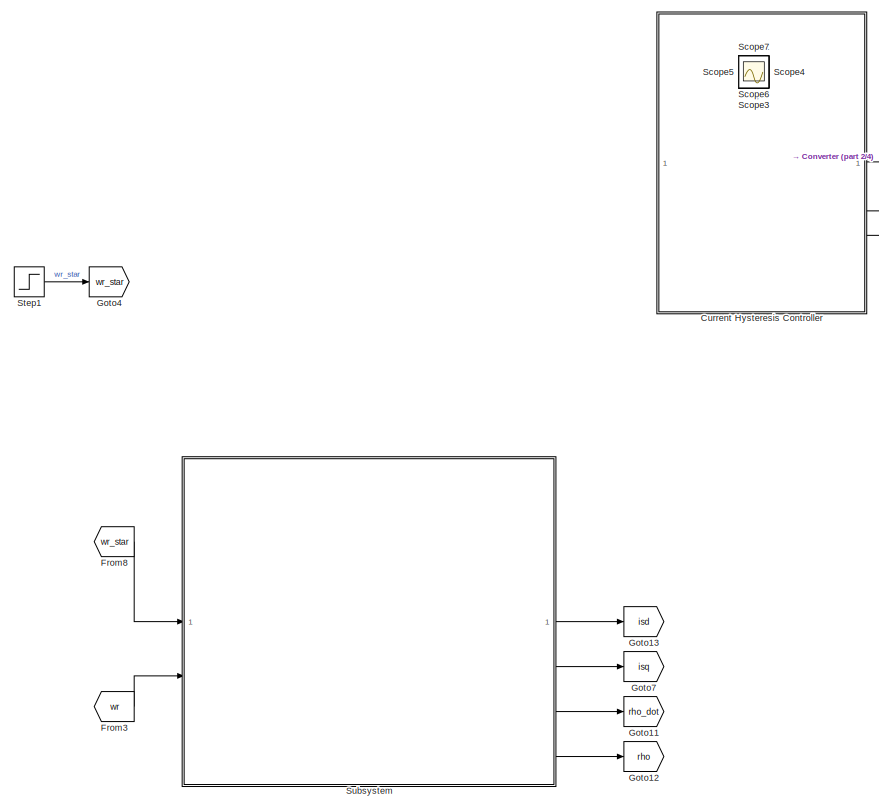
[diagram: root canvas - part 1/4, top left region]
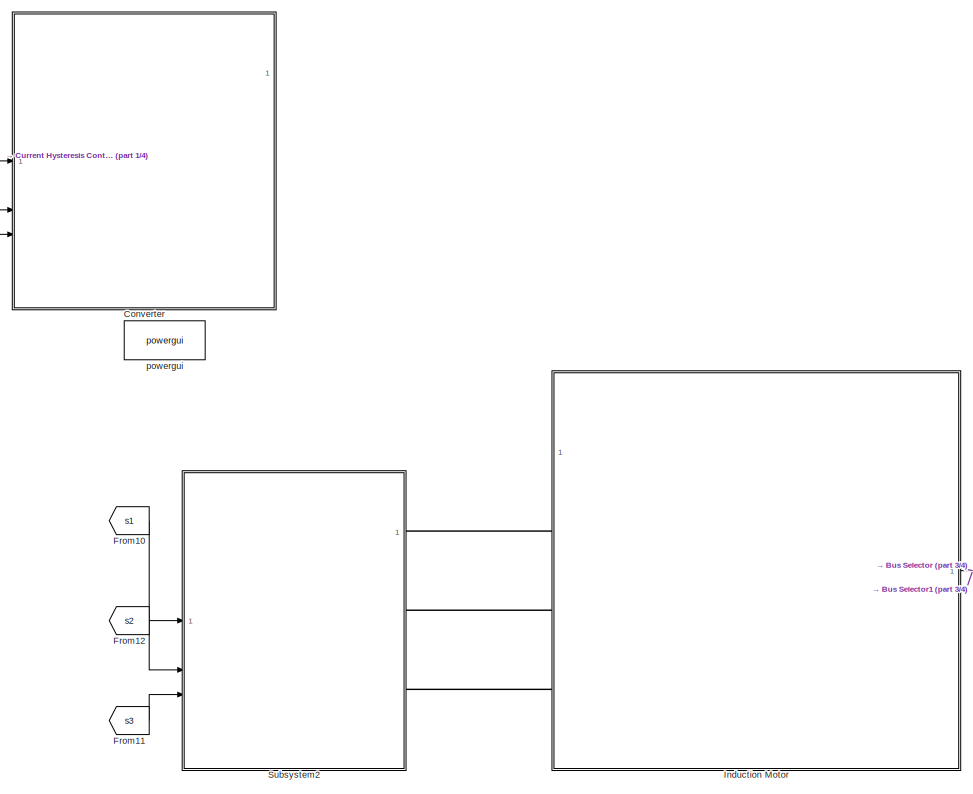
[diagram: root canvas - part 2/4, top center region]
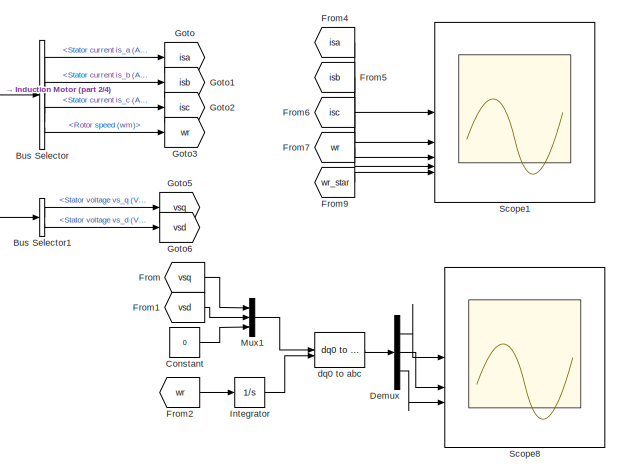
[diagram: root canvas - part 3/4, middle right region]
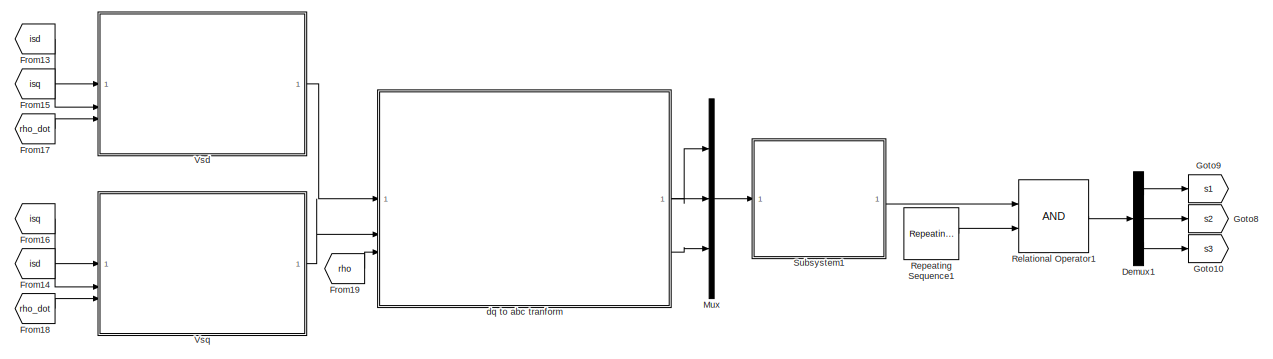
[diagram: root canvas - part 4/4, bottom center region]
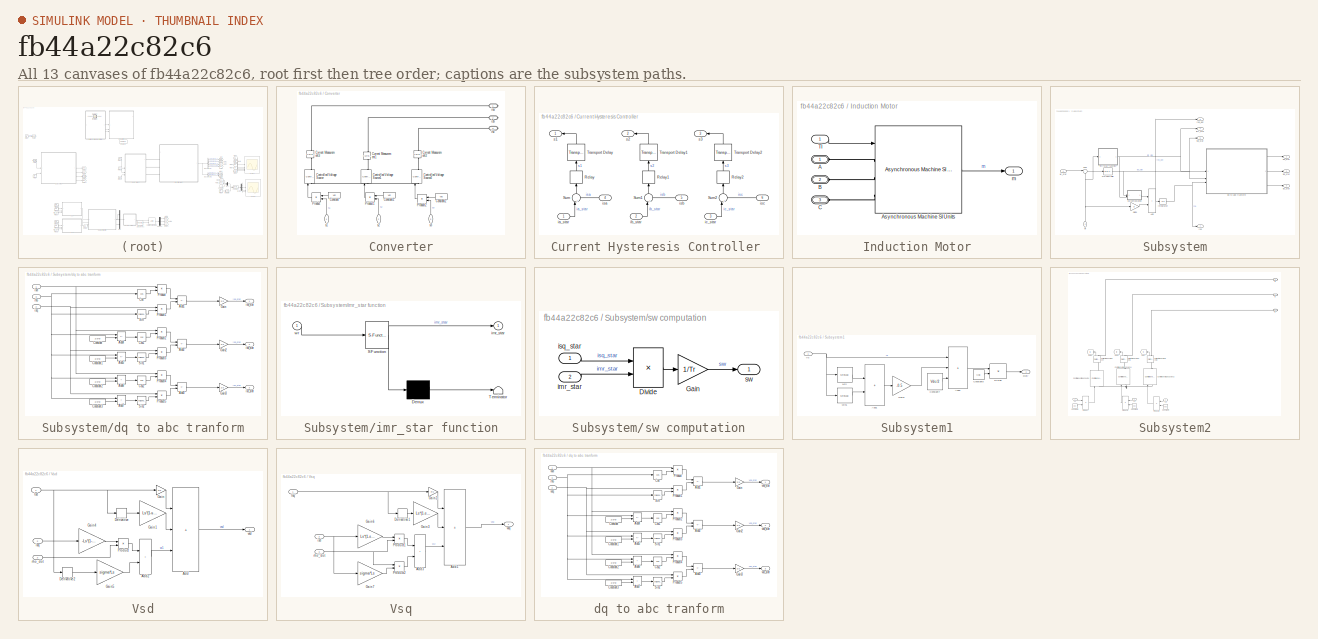
[diagram: thumbnail index - all 13 canvases of the model, root first then tree order]
MODEL slx_fb44a22c82c6
KIND model
CONFIG AbsTol = auto
CONFIG EnableMultiTasking = off
CONFIG FixedStep = auto
CONFIG InitFcn = Data
CONFIG MaxStep = auto
CONFIG MinStep = auto
CONFIG RelTol = 1e-3
CONFIG SampleTimeConstraint = Unconstrained
CONFIG SolverName = VariableStepAuto
CONFIG StartTime = 0.0
CONFIG StopTime = 5
BLOCK [BusSelector] Bus Selector
  OutputSignals = Stator measurements.Stator current is_a (A),Stator measurements.Stator current is_b (A),Stator measurements.Stator current is_c (A),Mechanical.Rotor speed (wm)
BLOCK [BusSelector] Bus Selector1
  OutputSignals = Stator measurements.Stator voltage vs_q (V),Stator measurements.Stator voltage vs_d (V)
BLOCK [Constant] Constant
  Value = 0
BLOCK [SubSystem] Converter
  Commented = on
  NameLocation = top
BLOCK [Constant] Converter/Constant
  NameLocation = top
  Value = Vdc
BLOCK [Constant] Converter/Constant1
  NameLocation = top
  Value = Vdc
BLOCK [Constant] Converter/Constant2
  NameLocation = top
  Value = Vdc
BLOCK [Reference] Converter/Controlled Voltage Source  REF=spsControlledVoltageSourceLib/Controlled Voltage Source
  LibrarySourceBlock = sps_lib/Sources/Controlled Voltage Source
  SourceBlock = spsControlledVoltageSourceLib/Controlled Voltage Source
  SourceType = Controlled Voltage Source
BLOCK [Reference] Converter/Controlled Voltage Source1  REF=spsControlledVoltageSourceLib/Controlled Voltage Source
  LibrarySourceBlock = sps_lib/Sources/Controlled Voltage Source
  SourceBlock = spsControlledVoltageSourceLib/Controlled Voltage Source
  SourceType = Controlled Voltage Source
BLOCK [Reference] Converter/Controlled Voltage Source2  REF=spsControlledVoltageSourceLib/Controlled Voltage Source
  LibrarySourceBlock = sps_lib/Sources/Controlled Voltage Source
  SourceBlock = spsControlledVoltageSourceLib/Controlled Voltage Source
  SourceType = Controlled Voltage Source
BLOCK [Reference] Converter/Current Measurement1  REF=spsCurrentMeasurementLib/Current Measurement
  LibrarySourceBlock = sps_lib/Sensors and Measurements/Current Measurement
  NameLocation = right
  SourceBlock = spsCurrentMeasurementLib/Current Measurement
  SourceType = Current Measurement
  UserDataPersistent = on
BLOCK [Reference] Converter/Current Measurement2  REF=spsCurrentMeasurementLib/Current Measurement
  LibrarySourceBlock = sps_lib/Sensors and Measurements/Current Measurement
  NameLocation = right
  SourceBlock = spsCurrentMeasurementLib/Current Measurement
  SourceType = Current Measurement
  UserDataPersistent = on
BLOCK [Reference] Converter/Current Measurement3  REF=spsCurrentMeasurementLib/Current Measurement
  LibrarySourceBlock = sps_lib/Sensors and Measurements/Current Measurement
  NameLocation = right
  SourceBlock = spsCurrentMeasurementLib/Current Measurement
  SourceType = Current Measurement
  UserDataPersistent = on
BLOCK [Product] Converter/Product
  NameLocation = top
BLOCK [Product] Converter/Product1
  NameLocation = top
BLOCK [Product] Converter/Product2
  NameLocation = top
BLOCK [PMIOPort] Converter/isa
  Side = Right
BLOCK [PMIOPort] Converter/isb
  Port = 2
  Side = Right
BLOCK [PMIOPort] Converter/isc
  Port = 3
  Side = Right
BLOCK [Inport] Converter/s1
  NameLocation = right
BLOCK [Inport] Converter/s2
  NameLocation = right
  Port = 2
BLOCK [Inport] Converter/s3
  NameLocation = right
  Port = 3
BLOCK [SubSystem] Current Hysteresis Controller 
  Commented = on
  NameLocation = top
  PortSchema = {"entries":[{"content":{"sides":[{"content":{"connectorIds":["In1","In2","In3"]},"type":"ConnectorPlacement.EquallySpacedRectSide","uuid":"0262a758-344e-4b59-aa8e-2379075e1762"},{"content":{"connectorIds":["Out1","Out2","Out3"],"side":"RIGHT"},"type":"ConnectorPlacement.EquallySpacedRectSide","uuid":"0941517e-4382-4a35-83ac-77ea733cd1ec"},{"content":{"connectorIds":[],"side":"TOP"},"type":"Connect...<+427ch>
BLOCK [Relay] Current Hysteresis Controller /Relay
  NameLocation = right
  OffSwitchValue = 0
  OnSwitchValue = delta
BLOCK [Relay] Current Hysteresis Controller /Relay1
  NameLocation = right
  OffSwitchValue = 0
  OnSwitchValue = delta
BLOCK [Relay] Current Hysteresis Controller /Relay2
  NameLocation = right
  OffSwitchValue = 0
  OnSwitchValue = delta
BLOCK [Sum] Current Hysteresis Controller /Sum
  Inputs = |+-
  NameLocation = right
BLOCK [Sum] Current Hysteresis Controller /Sum1
  Inputs = |+-
  NameLocation = right
BLOCK [Sum] Current Hysteresis Controller /Sum2
  Inputs = |+-
  NameLocation = right
BLOCK [TransportDelay] Current Hysteresis Controller /Transport Delay
  DelayTime = 10e-6
  NameLocation = right
BLOCK [TransportDelay] Current Hysteresis Controller /Transport Delay1
  DelayTime = 10e-6
  NameLocation = right
BLOCK [TransportDelay] Current Hysteresis Controller /Transport Delay2
  DelayTime = 10e-6
  NameLocation = right
BLOCK [Inport] Current Hysteresis Controller /ia_star
BLOCK [Inport] Current Hysteresis Controller /ib_star
  Port = 2
BLOCK [Inport] Current Hysteresis Controller /ic_star
  Port = 3
BLOCK [Inport] Current Hysteresis Controller /isa
  Port = 4
BLOCK [Inport] Current Hysteresis Controller /isb
  Port = 5
BLOCK [Inport] Current Hysteresis Controller /isc
  Port = 6
BLOCK [Outport] Current Hysteresis Controller /s1
BLOCK [Outport] Current Hysteresis Controller /s2
  Port = 2
BLOCK [Outport] Current Hysteresis Controller /s3
  Port = 3
BLOCK [Demux] Demux
  Outputs = 3
BLOCK [Demux] Demux1
  Outputs = 3
BLOCK [From] From
  GotoTag = vsq
BLOCK [From] From1
  GotoTag = vsd
BLOCK [From] From10
  GotoTag = s1
BLOCK [From] From11
  GotoTag = s3
BLOCK [From] From12
  GotoTag = s2
BLOCK [From] From13
  GotoTag = isd
BLOCK [From] From14
  GotoTag = isd
BLOCK [From] From15
  GotoTag = isq
BLOCK [From] From16
  GotoTag = isq
BLOCK [From] From17
  GotoTag = rho_dot
BLOCK [From] From18
  GotoTag = rho_dot
BLOCK [From] From19
  GotoTag = rho
BLOCK [From] From2
  GotoTag = wr
BLOCK [From] From3
  GotoTag = wr
BLOCK [From] From4
  GotoTag = isa
BLOCK [From] From5
  GotoTag = isb
BLOCK [From] From6
  GotoTag = isc
BLOCK [From] From7
  GotoTag = wr
BLOCK [From] From8
  GotoTag = wr_star
BLOCK [From] From9
  GotoTag = wr_star
BLOCK [Goto] Goto
  GotoTag = isa
BLOCK [Goto] Goto1
  GotoTag = isb
BLOCK [Goto] Goto10
  GotoTag = s3
  NameLocation = top
BLOCK [Goto] Goto11
  GotoTag = rho_dot
BLOCK [Goto] Goto12
  GotoTag = rho
BLOCK [Goto] Goto13
  GotoTag = isd
BLOCK [Goto] Goto2
  GotoTag = isc
BLOCK [Goto] Goto3
  GotoTag = wr
BLOCK [Goto] Goto4
  GotoTag = wr_star
BLOCK [Goto] Goto5
  GotoTag = vsq
BLOCK [Goto] Goto6
  GotoTag = vsd
BLOCK [Goto] Goto7
  GotoTag = isq
BLOCK [Goto] Goto8
  GotoTag = s2
  NameLocation = top
BLOCK [Goto] Goto9
  GotoTag = s1
BLOCK [SubSystem] Induction Motor
  NameLocation = top
BLOCK [PMIOPort] Induction Motor/A
  Side = Left
BLOCK [Reference] Induction Motor/Asynchronous Machine SI Units  REF=spsAsynchronousMachineSIUnitsLib/Asynchronous Machine
SI Units
  LibrarySourceBlock = sps_lib/Electrical Machines/Asynchronous Machine\nSI Units
  SourceBlock = spsAsynchronousMachineSIUnitsLib/Asynchronous Machine\nSI Units
  SourceType = Asynchronous Machine
BLOCK [PMIOPort] Induction Motor/B
  Port = 2
  Side = Left
BLOCK [PMIOPort] Induction Motor/C
  Port = 3
  Side = Left
BLOCK [Inport] Induction Motor/Tl
BLOCK [Outport] Induction Motor/m
BLOCK [Integrator] Integrator
BLOCK [Mux] Mux
  DisplayOption = bar
  Inputs = 3
BLOCK [Mux] Mux1
  DisplayOption = bar
  Inputs = 3
BLOCK [RelationalOperator] Relational Operator1
  InputSameDT = off
  OutDataTypeStr = boolean
  RndMeth = Simplest
BLOCK [Reference] Repeating Sequence1  REF=simulink/Sources/Repeating
Sequence
  SourceBlock = simulink/Sources/Repeating\nSequence
  SourceType = Repeating table
BLOCK [Scope] Scope
  Floating = off
  IOType = viewer
  NumInputPorts = 1
  ScopeSpecificationString = Simulink.scopes.TimeScopeBlockCfg('CurrentConfiguration', extmgr.ConfigurationSet(extmgr.Configuration('Core','General UI',true),extmgr.Configuration('Core','Source UI',true),extmgr.Configuration('Sources','WiredSimulink',true),extmgr.Configuration('Visuals','Time Domain',true,'SerializedDisplays',{struct('MinYLimReal','-0.0000013','MaxYLimReal','0.0000001','YLabelReal','','MinYLimMag','0.0000000'...<+1367ch>
BLOCK [Scope] Scope1
  Floating = off
  NumInputPorts = 5
  ScopeSpecificationString = Simulink.scopes.TimeScopeBlockCfg('CurrentConfiguration', extmgr.ConfigurationSet(extmgr.Configuration('Core','General UI',true),extmgr.Configuration('Core','Source UI',true),extmgr.Configuration('Sources','WiredSimulink',true,'DataLoggingVariableName','ScopeData1'),extmgr.Configuration('Visuals','Time Domain',true,'TimeAxisLabels','All','SerializedDisplays',{struct('MinYLimReal','-12424.37348','M...<+3599ch>
BLOCK [Scope] Scope2
  Floating = off
  IOType = viewer
  NumInputPorts = 1
  ScopeSpecificationString = Simulink.scopes.TimeScopeBlockCfg('CurrentConfiguration', extmgr.ConfigurationSet(extmgr.Configuration('Core','General UI',true),extmgr.Configuration('Core','Source UI',true),extmgr.Configuration('Sources','WiredSimulink',true,'DataLoggingVariableName','ScopeData1'),extmgr.Configuration('Visuals','Time Domain',true,'SerializedDisplays',{struct('MinYLimReal','-502005782268.1521','MaxYLimReal','5578...<+1466ch>
BLOCK [Scope] Scope3
  Floating = off
  IOType = viewer
  NumInputPorts = 1
  ScopeSpecificationString = Simulink.scopes.TimeScopeBlockCfg('CurrentConfiguration', extmgr.ConfigurationSet(extmgr.Configuration('Core','General UI',true),extmgr.Configuration('Core','Source UI',true),extmgr.Configuration('Sources','WiredSimulink',true,'DataLoggingVariableName','ScopeData2'),extmgr.Configuration('Visuals','Time Domain',true,'SerializedDisplays',{struct('MinYLimReal','-3574835038086523.00000','MaxYLimReal',...<+1508ch>
BLOCK [Scope] Scope4
  Floating = off
  IOType = viewer
  NumInputPorts = 1
  ScopeSpecificationString = Simulink.scopes.TimeScopeBlockCfg('CurrentConfiguration', extmgr.ConfigurationSet(extmgr.Configuration('Core','General UI',true),extmgr.Configuration('Core','Source UI',true),extmgr.Configuration('Sources','WiredSimulink',true,'DataLoggingVariableName','ScopeData4'),extmgr.Configuration('Visuals','Time Domain',true,'SerializedDisplays',{struct('MinYLimReal','-12.51125','MaxYLimReal','12.50125','YL...<+1423ch>
BLOCK [Scope] Scope5
  Floating = off
  IOType = viewer
  NumInputPorts = 1
  ScopeSpecificationString = Simulink.scopes.TimeScopeBlockCfg('CurrentConfiguration', extmgr.ConfigurationSet(extmgr.Configuration('Core','General UI',true),extmgr.Configuration('Core','Source UI',true),extmgr.Configuration('Sources','WiredSimulink',true,'DataLoggingVariableName','ScopeData3'),extmgr.Configuration('Visuals','Time Domain',true,'SerializedDisplays',{struct('MinYLimReal','104.54545','MaxYLimReal','304.54545','Y...<+1373ch>
BLOCK [Scope] Scope6
  Floating = off
  IOType = viewer
  NumInputPorts = 1
  ScopeSpecificationString = Simulink.scopes.TimeScopeBlockCfg('CurrentConfiguration', extmgr.ConfigurationSet(extmgr.Configuration('Core','General UI',true),extmgr.Configuration('Core','Source UI',true),extmgr.Configuration('Sources','WiredSimulink',true,'DataLoggingVariableName','ScopeData4'),extmgr.Configuration('Visuals','Time Domain',true,'SerializedDisplays',{struct('MinYLimReal','-142262712.92777','MaxYLimReal','240071...<+1448ch>
BLOCK [Scope] Scope7
  Floating = off
  IOType = viewer
  NumInputPorts = 1
  ScopeSpecificationString = Simulink.scopes.TimeScopeBlockCfg('CurrentConfiguration', extmgr.ConfigurationSet(extmgr.Configuration('Core','General UI',true),extmgr.Configuration('Core','Source UI',true),extmgr.Configuration('Sources','WiredSimulink',true,'DataLoggingVariableName','ScopeData5'),extmgr.Configuration('Visuals','Time Domain',true,'SerializedDisplays',{struct('MinYLimReal','0.24288','MaxYLimReal','0.26693','YLabe...<+1403ch>
BLOCK [Scope] Scope8
  Floating = off
  NumInputPorts = 3
  ScopeSpecificationString = Simulink.scopes.TimeScopeBlockCfg('CurrentConfiguration', extmgr.ConfigurationSet(extmgr.Configuration('Core','General UI',true),extmgr.Configuration('Core','Source UI',true),extmgr.Configuration('Sources','WiredSimulink',true,'DataLoggingVariableName','ScopeData6'),extmgr.Configuration('Visuals','Time Domain',true,'TimeAxisLabels','All','SerializedDisplays',{struct('MinYLimReal','-291.66667','Max...<+2790ch>
BLOCK [Step] Step1
  After = wn
  SampleTime = 0
BLOCK [SubSystem] Subsystem
BLOCK [Sum] Subsystem/Add
  IconShape = rectangular
BLOCK [Gain] Subsystem/Gain1
  Gain = p
BLOCK [Integrator] Subsystem/Integrator
BLOCK [Reference] Subsystem/PID Controller  REF=slpidlib/PID Controller
  LibrarySourceBlock = simulink/Continuous/PID Controller
  SourceBlock = slpidlib/PID Controller
  SourceType = PID 1dof
BLOCK [Sum] Subsystem/Sum
  Inputs = |+-
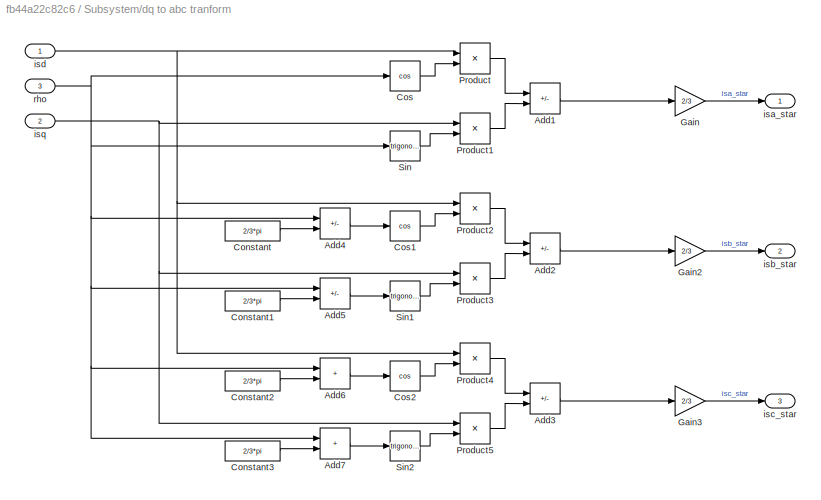
BLOCK [SubSystem] Subsystem/dq to abc tranform
  Commented = on
  NameLocation = top
BLOCK [Sum] Subsystem/dq to abc tranform/Add1
  IconShape = rectangular
  Inputs = +-
BLOCK [Sum] Subsystem/dq to abc tranform/Add2
  IconShape = rectangular
  Inputs = +-
BLOCK [Sum] Subsystem/dq to abc tranform/Add3
  IconShape = rectangular
  Inputs = +-
BLOCK [Sum] Subsystem/dq to abc tranform/Add4
  IconShape = rectangular
  Inputs = +-
BLOCK [Sum] Subsystem/dq to abc tranform/Add5
  IconShape = rectangular
  Inputs = +-
BLOCK [Sum] Subsystem/dq to abc tranform/Add6
  IconShape = rectangular
BLOCK [Sum] Subsystem/dq to abc tranform/Add7
  IconShape = rectangular
BLOCK [Constant] Subsystem/dq to abc tranform/Constant
  Value = 2/3*pi
BLOCK [Constant] Subsystem/dq to abc tranform/Constant1
  Value = 2/3*pi
BLOCK [Constant] Subsystem/dq to abc tranform/Constant2
  Value = 2/3*pi
BLOCK [Constant] Subsystem/dq to abc tranform/Constant3
  Value = 2/3*pi
BLOCK [Trigonometry] Subsystem/dq to abc tranform/Cos
  Operator = cos
BLOCK [Trigonometry] Subsystem/dq to abc tranform/Cos1
  Operator = cos
BLOCK [Trigonometry] Subsystem/dq to abc tranform/Cos2
  Operator = cos
BLOCK [Gain] Subsystem/dq to abc tranform/Gain
  Gain = 2/3
BLOCK [Gain] Subsystem/dq to abc tranform/Gain2
  Gain = 2/3
BLOCK [Gain] Subsystem/dq to abc tranform/Gain3
  Gain = 2/3
BLOCK [Product] Subsystem/dq to abc tranform/Product
BLOCK [Product] Subsystem/dq to abc tranform/Product1
BLOCK [Product] Subsystem/dq to abc tranform/Product2
BLOCK [Product] Subsystem/dq to abc tranform/Product3
BLOCK [Product] Subsystem/dq to abc tranform/Product4
BLOCK [Product] Subsystem/dq to abc tranform/Product5
BLOCK [Trigonometry] Subsystem/dq to abc tranform/Sin
BLOCK [Trigonometry] Subsystem/dq to abc tranform/Sin1
BLOCK [Trigonometry] Subsystem/dq to abc tranform/Sin2
BLOCK [Outport] Subsystem/dq to abc tranform/isa_star
BLOCK [Outport] Subsystem/dq to abc tranform/isb_star
  Port = 2
BLOCK [Outport] Subsystem/dq to abc tranform/isc_star
  Port = 3
BLOCK [Inport] Subsystem/dq to abc tranform/isd
BLOCK [Inport] Subsystem/dq to abc tranform/isq
  Port = 2
BLOCK [Inport] Subsystem/dq to abc tranform/rho
  Port = 3
BLOCK [Outport] Subsystem/imr_star
  Port = 4
BLOCK [SubSystem] Subsystem/imr_star function
  ErrorFcn = Stateflow.Translate.translate
  LibrarySourceBlock = simulink/User-Defined\nFunctions/MATLAB Function
  NameLocation = top
  PermitHierarchicalResolution = ExplicitOnly
  SFBlockType = MATLAB Function
  TreatAsAtomicUnit = on
BLOCK [Demux] Subsystem/imr_star function/ Demux 
  Outputs = 1
BLOCK [S-Function] Subsystem/imr_star function/ SFunction 
  EnableBusSupport = on
  FunctionName = sf_sfun
  Parameters = Imn,wn
  PortCounts = [1 2]
  SFcnIsStateOwnerBlock = off
  SFunctionDeploymentMode = off
  Tag = Stateflow S-Function 2
BLOCK [Terminator] Subsystem/imr_star function/ Terminator 
BLOCK [Outport] Subsystem/imr_star function/imr_star
BLOCK [Inport] Subsystem/imr_star function/wr
BLOCK [Outport] Subsystem/isa_star
BLOCK [Outport] Subsystem/isb_star
  Port = 2
BLOCK [Outport] Subsystem/isc_star
  Port = 3
BLOCK [Outport] Subsystem/isq_star
  Port = 5
BLOCK [Outport] Subsystem/rho
  Port = 7
BLOCK [Outport] Subsystem/rho_dot
  Port = 6
BLOCK [SubSystem] Subsystem/sw computation
  NameLocation = top
BLOCK [Product] Subsystem/sw computation/Divide
  Inputs = */
  RndMeth = Zero
  SaturateOnIntegerOverflow = on
BLOCK [Gain] Subsystem/sw computation/Gain
  Gain = 1/Tr
BLOCK [Inport] Subsystem/sw computation/imr_star
  Port = 2
BLOCK [Inport] Subsystem/sw computation/isq_star
  NameLocation = top
BLOCK [Outport] Subsystem/sw computation/sw
BLOCK [Inport] Subsystem/wr
  NameLocation = right
  Port = 2
BLOCK [Inport] Subsystem/wr_star
BLOCK [SubSystem] Subsystem1
BLOCK [Sum] Subsystem1/Add1
  IconShape = rectangular
BLOCK [Sum] Subsystem1/Add2
  IconShape = rectangular
  Inputs = +++
BLOCK [Constant] Subsystem1/Constant7
  Value = Vdc/2
BLOCK [Constant] Subsystem1/Constant8
  Value = Vdc
BLOCK [Product] Subsystem1/Divide
  Inputs = */
  RndMeth = Zero
  SaturateOnIntegerOverflow = on
BLOCK [Outport] Subsystem1/Duty
BLOCK [Gain] Subsystem1/Gain1
  Gain = -0.5
BLOCK [MinMax] Subsystem1/Min
BLOCK [MinMax] Subsystem1/Min1
  Function = max
BLOCK [Inport] Subsystem1/Vs
  SampleTime = Ts
BLOCK [SubSystem] Subsystem2
BLOCK [Constant] Subsystem2/Constant1
  Value = Vdc
BLOCK [Constant] Subsystem2/Constant2
  NameLocation = top
  Value = Vdc
BLOCK [Constant] Subsystem2/Constant4
  NameLocation = top
  Value = Vdc
BLOCK [Reference] Subsystem2/Controlled Voltage Source  REF=spsControlledVoltageSourceLib/Controlled Voltage Source
  SourceBlock = spsControlledVoltageSourceLib/Controlled Voltage Source
  SourceType = Controlled Voltage Source
BLOCK [Reference] Subsystem2/Controlled Voltage Source1  REF=spsControlledVoltageSourceLib/Controlled Voltage Source
  SourceBlock = spsControlledVoltageSourceLib/Controlled Voltage Source
  SourceType = Controlled Voltage Source
BLOCK [Reference] Subsystem2/Controlled Voltage Source2  REF=spsControlledVoltageSourceLib/Controlled Voltage Source
  SourceBlock = spsControlledVoltageSourceLib/Controlled Voltage Source
  SourceType = Controlled Voltage Source
BLOCK [Reference] Subsystem2/Current Measurement  REF=spsCurrentMeasurementLib/Current Measurement
  LibrarySourceBlock = sps_lib/Sensors and Measurements/Current Measurement
  NameLocation = right
  SourceBlock = spsCurrentMeasurementLib/Current Measurement
  SourceType = Current Measurement
  UserDataPersistent = on
BLOCK [Reference] Subsystem2/Current Measurement1  REF=spsCurrentMeasurementLib/Current Measurement
  LibrarySourceBlock = sps_lib/Sensors and Measurements/Current Measurement
  NameLocation = right
  SourceBlock = spsCurrentMeasurementLib/Current Measurement
  SourceType = Current Measurement
  UserDataPersistent = on
BLOCK [Reference] Subsystem2/Current Measurement2  REF=spsCurrentMeasurementLib/Current Measurement
  LibrarySourceBlock = sps_lib/Sensors and Measurements/Current Measurement
  NameLocation = right
  SourceBlock = spsCurrentMeasurementLib/Current Measurement
  SourceType = Current Measurement
  UserDataPersistent = on
BLOCK [Goto] Subsystem2/Goto5
  GotoTag = ia
  NameLocation = top
BLOCK [Goto] Subsystem2/Goto6
  GotoTag = ib
  NameLocation = top
BLOCK [Goto] Subsystem2/Goto7
  GotoTag = ic
  NameLocation = top
BLOCK [Product] Subsystem2/Product
BLOCK [Product] Subsystem2/Product1
  NameLocation = top
BLOCK [Product] Subsystem2/Product2
  NameLocation = top
BLOCK [PMIOPort] Subsystem2/ia
  Side = Right
BLOCK [PMIOPort] Subsystem2/ib
  Port = 2
  Side = Right
BLOCK [PMIOPort] Subsystem2/ic
  Port = 3
  Side = Right
BLOCK [Inport] Subsystem2/s1
BLOCK [Inport] Subsystem2/s2
  NameLocation = top
  Port = 2
BLOCK [Inport] Subsystem2/s3
  NameLocation = top
  Port = 3
BLOCK [SubSystem] Vsd
BLOCK [Sum] Vsd/Add
  IconShape = rectangular
  Inputs = +++
BLOCK [Sum] Vsd/Add2
  IconShape = rectangular
BLOCK [Derivative] Vsd/Derivative
BLOCK [Derivative] Vsd/Derivative2
BLOCK [Gain] Vsd/Gain
  Gain = Rs
BLOCK [Gain] Vsd/Gain1
  Gain = Ls*(1-sigma)
BLOCK [Gain] Vsd/Gain4
  Gain = -Ls*(1-sigma)
BLOCK [Gain] Vsd/Gain5
  Gain = sigma*Ls
BLOCK [Inport] Vsd/Isd
BLOCK [Product] Vsd/Product
BLOCK [Inport] Vsd/isq
  Port = 2
BLOCK [Inport] Vsd/rho_dot
  Port = 3
BLOCK [Outport] Vsd/vsd
BLOCK [SubSystem] Vsq
BLOCK [Sum] Vsq/Add1
  IconShape = rectangular
  Inputs = +++
BLOCK [Sum] Vsq/Add3
  IconShape = rectangular
BLOCK [Derivative] Vsq/Derivative1
BLOCK [Gain] Vsq/Gain2
  Gain = Rs
BLOCK [Gain] Vsq/Gain3
  Gain = Ls*(1-sigma)
BLOCK [Gain] Vsq/Gain6
  Gain = Ls*(1-sigma)
BLOCK [Gain] Vsq/Gain7
  Gain = sigma*Ls
BLOCK [Inport] Vsq/Isq
BLOCK [Product] Vsq/Product1
BLOCK [Product] Vsq/Product2
BLOCK [Inport] Vsq/isd
  Port = 2
BLOCK [Inport] Vsq/rho_dot
  Port = 3
BLOCK [Outport] Vsq/vsq
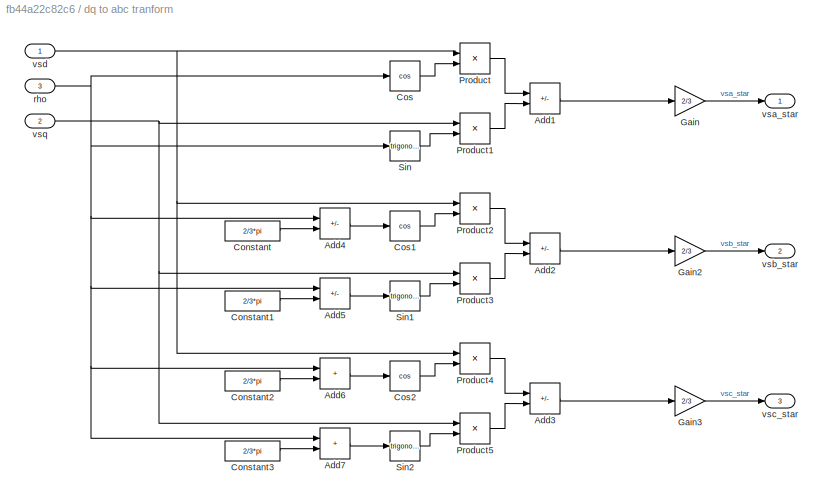
BLOCK [SubSystem] dq to abc tranform
  NameLocation = top
BLOCK [Sum] dq to abc tranform/Add1
  IconShape = rectangular
  Inputs = +-
BLOCK [Sum] dq to abc tranform/Add2
  IconShape = rectangular
  Inputs = +-
BLOCK [Sum] dq to abc tranform/Add3
  IconShape = rectangular
  Inputs = +-
BLOCK [Sum] dq to abc tranform/Add4
  IconShape = rectangular
  Inputs = +-
BLOCK [Sum] dq to abc tranform/Add5
  IconShape = rectangular
  Inputs = +-
BLOCK [Sum] dq to abc tranform/Add6
  IconShape = rectangular
BLOCK [Sum] dq to abc tranform/Add7
  IconShape = rectangular
BLOCK [Constant] dq to abc tranform/Constant
  Value = 2/3*pi
BLOCK [Constant] dq to abc tranform/Constant1
  Value = 2/3*pi
BLOCK [Constant] dq to abc tranform/Constant2
  Value = 2/3*pi
BLOCK [Constant] dq to abc tranform/Constant3
  Value = 2/3*pi
BLOCK [Trigonometry] dq to abc tranform/Cos
  Operator = cos
BLOCK [Trigonometry] dq to abc tranform/Cos1
  Operator = cos
BLOCK [Trigonometry] dq to abc tranform/Cos2
  Operator = cos
BLOCK [Gain] dq to abc tranform/Gain
  Gain = 2/3
BLOCK [Gain] dq to abc tranform/Gain2
  Gain = 2/3
BLOCK [Gain] dq to abc tranform/Gain3
  Gain = 2/3
BLOCK [Product] dq to abc tranform/Product
BLOCK [Product] dq to abc tranform/Product1
BLOCK [Product] dq to abc tranform/Product2
BLOCK [Product] dq to abc tranform/Product3
BLOCK [Product] dq to abc tranform/Product4
BLOCK [Product] dq to abc tranform/Product5
BLOCK [Trigonometry] dq to abc tranform/Sin
BLOCK [Trigonometry] dq to abc tranform/Sin1
BLOCK [Trigonometry] dq to abc tranform/Sin2
BLOCK [Inport] dq to abc tranform/rho
  Port = 3
BLOCK [Outport] dq to abc tranform/vsa_star
BLOCK [Outport] dq to abc tranform/vsb_star
  Port = 2
BLOCK [Outport] dq to abc tranform/vsc_star
  Port = 3
BLOCK [Inport] dq to abc tranform/vsd
BLOCK [Inport] dq to abc tranform/vsq
  Port = 2
BLOCK [Reference] dq0 to abc  REF=spsdq0toabcLib/dq0 to abc
  LibrarySourceBlock = sps_lib/Control/dq0 to abc
  SourceBlock = spsdq0toabcLib/dq0 to abc
  SourceType = dq0 to abc Transformation
BLOCK [Reference] powergui  REF=sps_lib/powergui
  Priority = 1
  SourceBlock = sps_lib/powergui
  SourceType = PSB option menu block
LINE Bus Selector1:1 -> Goto5:1
LINE Bus Selector1:2 -> Goto6:1
LINE Bus Selector:1 -> Goto:1
LINE Bus Selector:2 -> Goto1:1
LINE Bus Selector:3 -> Goto2:1
LINE Bus Selector:4 -> Goto3:1
LINE Constant:1 -> Mux1:3
LINE Converter/Constant1:1 -> Converter/Product1:1
LINE Converter/Constant2:1 -> Converter/Product2:1
LINE Converter/Constant:1 -> Converter/Product:1
LINE Converter/Product1:1 -> Converter/Controlled Voltage Source1:1
LINE Converter/Product2:1 -> Converter/Controlled Voltage Source2:1
LINE Converter/Product:1 -> Converter/Controlled Voltage Source:1
LINE Converter/s1:1 -> Converter/Product:2
LINE Converter/s2:1 -> Converter/Product1:2
LINE Converter/s3:1 -> Converter/Product2:2
LINE Current Hysteresis Controller /Relay1:1 -> Current Hysteresis Controller /Transport Delay1:1
LINE Current Hysteresis Controller /Relay2:1 -> Current Hysteresis Controller /Transport Delay2:1
LINE Current Hysteresis Controller /Relay:1 -> Current Hysteresis Controller /Transport Delay:1
LINE Current Hysteresis Controller /Sum1:1 -> Current Hysteresis Controller /Relay1:1
LINE Current Hysteresis Controller /Sum2:1 -> Current Hysteresis Controller /Relay2:1
LINE Current Hysteresis Controller /Sum:1 -> Current Hysteresis Controller /Relay:1
LINE Current Hysteresis Controller /Transport Delay1:1 -> Current Hysteresis Controller /s2:1
LINE Current Hysteresis Controller /Transport Delay2:1 -> Current Hysteresis Controller /s3:1
LINE Current Hysteresis Controller /Transport Delay:1 -> Current Hysteresis Controller /s1:1
LINE Current Hysteresis Controller /ia_star:1 -> Current Hysteresis Controller /Sum:1
LINE Current Hysteresis Controller /ib_star:1 -> Current Hysteresis Controller /Sum1:1
LINE Current Hysteresis Controller /ic_star:1 -> Current Hysteresis Controller /Sum2:1
LINE Current Hysteresis Controller /isa:1 -> Current Hysteresis Controller /Sum:2
LINE Current Hysteresis Controller /isb:1 -> Current Hysteresis Controller /Sum1:2
LINE Current Hysteresis Controller /isc:1 -> Current Hysteresis Controller /Sum2:2
LINE Current Hysteresis Controller :1 -> Converter:1
LINE Current Hysteresis Controller :2 -> Converter:2
LINE Current Hysteresis Controller :3 -> Converter:3
LINE Demux1:1 -> Goto9:1
LINE Demux1:2 -> Goto8:1
LINE Demux1:3 -> Goto10:1
LINE Demux:1 -> Scope8:1
LINE Demux:2 -> Scope8:2
LINE Demux:3 -> Scope8:3
LINE From10:1 -> Subsystem2:1
LINE From11:1 -> Subsystem2:3
LINE From12:1 -> Subsystem2:2
LINE From13:1 -> Vsd:1
LINE From14:1 -> Vsq:2
LINE From15:1 -> Vsd:2
LINE From16:1 -> Vsq:1
LINE From17:1 -> Vsd:3
LINE From18:1 -> Vsq:3
LINE From19:1 -> dq to abc tranform:3
LINE From1:1 -> Mux1:2
LINE From2:1 -> Integrator:1
LINE From3:1 -> Subsystem:2
LINE From4:1 -> Scope1:1
LINE From5:1 -> Scope1:2
LINE From6:1 -> Scope1:3
LINE From7:1 -> Scope1:4
LINE From8:1 -> Subsystem:1
LINE From9:1 -> Scope1:5
LINE From:1 -> Mux1:1
LINE Induction Motor/Asynchronous Machine SI Units:1 -> Induction Motor/m:1
LINE Induction Motor/Tl:1 -> Induction Motor/Asynchronous Machine SI Units:1
NET Induction Motor:1 -> Bus Selector1:1, Bus Selector:1
LINE Integrator:1 -> dq0 to abc:2
LINE Mux1:1 -> dq0 to abc:1
LINE Mux:1 -> Subsystem1:1
LINE Relational Operator1:1 -> Demux1:1
LINE Repeating Sequence1:1 -> Relational Operator1:2
LINE Step1:1 -> Goto4:1
NET Subsystem/Add:1 -> Subsystem/Integrator:1, Subsystem/rho_dot:1
LINE Subsystem/Gain1:1 -> Subsystem/Add:2
NET Subsystem/Integrator:1 -> Subsystem/dq to abc tranform:3, Subsystem/rho:1
NET Subsystem/PID Controller:1 -> Subsystem/dq to abc tranform:2, Subsystem/isq_star:1, Subsystem/sw computation:1
LINE Subsystem/Sum:1 -> Subsystem/PID Controller:1
LINE Subsystem/dq to abc tranform/Add1:1 -> Subsystem/dq to abc tranform/Gain:1
LINE Subsystem/dq to abc tranform/Add2:1 -> Subsystem/dq to abc tranform/Gain2:1
LINE Subsystem/dq to abc tranform/Add3:1 -> Subsystem/dq to abc tranform/Gain3:1
LINE Subsystem/dq to abc tranform/Add4:1 -> Subsystem/dq to abc tranform/Cos1:1
LINE Subsystem/dq to abc tranform/Add5:1 -> Subsystem/dq to abc tranform/Sin1:1
LINE Subsystem/dq to abc tranform/Add6:1 -> Subsystem/dq to abc tranform/Cos2:1
LINE Subsystem/dq to abc tranform/Add7:1 -> Subsystem/dq to abc tranform/Sin2:1
LINE Subsystem/dq to abc tranform/Constant1:1 -> Subsystem/dq to abc tranform/Add5:2
LINE Subsystem/dq to abc tranform/Constant2:1 -> Subsystem/dq to abc tranform/Add6:2
LINE Subsystem/dq to abc tranform/Constant3:1 -> Subsystem/dq to abc tranform/Add7:2
LINE Subsystem/dq to abc tranform/Constant:1 -> Subsystem/dq to abc tranform/Add4:2
LINE Subsystem/dq to abc tranform/Cos1:1 -> Subsystem/dq to abc tranform/Product2:2
LINE Subsystem/dq to abc tranform/Cos2:1 -> Subsystem/dq to abc tranform/Product4:2
LINE Subsystem/dq to abc tranform/Cos:1 -> Subsystem/dq to abc tranform/Product:2
LINE Subsystem/dq to abc tranform/Gain2:1 -> Subsystem/dq to abc tranform/isb_star:1
LINE Subsystem/dq to abc tranform/Gain3:1 -> Subsystem/dq to abc tranform/isc_star:1
LINE Subsystem/dq to abc tranform/Gain:1 -> Subsystem/dq to abc tranform/isa_star:1
LINE Subsystem/dq to abc tranform/Product1:1 -> Subsystem/dq to abc tranform/Add1:2
LINE Subsystem/dq to abc tranform/Product2:1 -> Subsystem/dq to abc tranform/Add2:1
LINE Subsystem/dq to abc tranform/Product3:1 -> Subsystem/dq to abc tranform/Add2:2
LINE Subsystem/dq to abc tranform/Product4:1 -> Subsystem/dq to abc tranform/Add3:1
LINE Subsystem/dq to abc tranform/Product5:1 -> Subsystem/dq to abc tranform/Add3:2
LINE Subsystem/dq to abc tranform/Product:1 -> Subsystem/dq to abc tranform/Add1:1
LINE Subsystem/dq to abc tranform/Sin1:1 -> Subsystem/dq to abc tranform/Product3:2
LINE Subsystem/dq to abc tranform/Sin2:1 -> Subsystem/dq to abc tranform/Product5:2
LINE Subsystem/dq to abc tranform/Sin:1 -> Subsystem/dq to abc tranform/Product1:2
NET Subsystem/dq to abc tranform/isd:1 -> Subsystem/dq to abc tranform/Product2:1, Subsystem/dq to abc tranform/Product4:1, Subsystem/dq to abc tranform/Product:1
NET Subsystem/dq to abc tranform/isq:1 -> Subsystem/dq to abc tranform/Product1:1, Subsystem/dq to abc tranform/Product3:1, Subsystem/dq to abc tranform/Product5:1
NET Subsystem/dq to abc tranform/rho:1 -> Subsystem/dq to abc tranform/Add4:1, Subsystem/dq to abc tranform/Add5:1, Subsystem/dq to abc tranform/Add6:1, Subsystem/dq to abc tranform/Add7:1, Subsystem/dq to abc tranform/Cos:1, Subsystem/dq to abc tranform/Sin:1
LINE Subsystem/dq to abc tranform:1 -> Subsystem/isa_star:1
LINE Subsystem/dq to abc tranform:2 -> Subsystem/isb_star:1
LINE Subsystem/dq to abc tranform:3 -> Subsystem/isc_star:1
NET Subsystem/imr_star function:1 -> Subsystem/dq to abc tranform:1, Subsystem/imr_star:1, Subsystem/sw computation:2
LINE Subsystem/sw computation/Divide:1 -> Subsystem/sw computation/Gain:1
LINE Subsystem/sw computation/Gain:1 -> Subsystem/sw computation/sw:1
LINE Subsystem/sw computation/imr_star:1 -> Subsystem/sw computation/Divide:2
LINE Subsystem/sw computation/isq_star:1 -> Subsystem/sw computation/Divide:1
LINE Subsystem/sw computation:1 -> Subsystem/Add:1
NET Subsystem/wr:1 -> Subsystem/Gain1:1, Subsystem/Sum:2, Subsystem/imr_star function:1
LINE Subsystem/wr_star:1 -> Subsystem/Sum:1
LINE Subsystem1/Add1:1 -> Subsystem1/Gain1:1
LINE Subsystem1/Add2:1 -> Subsystem1/Divide:1
LINE Subsystem1/Constant7:1 -> Subsystem1/Add2:3
LINE Subsystem1/Constant8:1 -> Subsystem1/Divide:2
LINE Subsystem1/Divide:1 -> Subsystem1/Duty:1
LINE Subsystem1/Gain1:1 -> Subsystem1/Add2:2
LINE Subsystem1/Min1:1 -> Subsystem1/Add1:2
LINE Subsystem1/Min:1 -> Subsystem1/Add1:1
NET Subsystem1/Vs:1 -> Subsystem1/Add2:1, Subsystem1/Min1:1, Subsystem1/Min:1
LINE Subsystem1:1 -> Relational Operator1:1
LINE Subsystem2/Constant1:1 -> Subsystem2/Product:2
LINE Subsystem2/Constant2:1 -> Subsystem2/Product1:2
LINE Subsystem2/Constant4:1 -> Subsystem2/Product2:2
LINE Subsystem2/Current Measurement1:1 -> Subsystem2/Goto6:1
LINE Subsystem2/Current Measurement2:1 -> Subsystem2/Goto7:1
LINE Subsystem2/Current Measurement:1 -> Subsystem2/Goto5:1
LINE Subsystem2/Product1:1 -> Subsystem2/Controlled Voltage Source1:1
LINE Subsystem2/Product2:1 -> Subsystem2/Controlled Voltage Source2:1
LINE Subsystem2/Product:1 -> Subsystem2/Controlled Voltage Source:1
LINE Subsystem2/s1:1 -> Subsystem2/Product:1
LINE Subsystem2/s2:1 -> Subsystem2/Product1:1
LINE Subsystem2/s3:1 -> Subsystem2/Product2:1
LINE Subsystem:4 -> Goto13:1
LINE Subsystem:5 -> Goto7:1
LINE Subsystem:6 -> Goto11:1
LINE Subsystem:7 -> Goto12:1
LINE Vsd/Add2:1 -> Vsd/Add:3
LINE Vsd/Add:1 -> Vsd/vsd:1
LINE Vsd/Derivative2:1 -> Vsd/Gain5:1
LINE Vsd/Derivative:1 -> Vsd/Gain1:1
LINE Vsd/Gain1:1 -> Vsd/Add:2
LINE Vsd/Gain4:1 -> Vsd/Product:1
LINE Vsd/Gain5:1 -> Vsd/Add2:2
LINE Vsd/Gain:1 -> Vsd/Add:1
NET Vsd/Isd:1 -> Vsd/Derivative2:1, Vsd/Derivative:1, Vsd/Gain:1
LINE Vsd/Product:1 -> Vsd/Add2:1
LINE Vsd/isq:1 -> Vsd/Gain4:1
LINE Vsd/rho_dot:1 -> Vsd/Product:2
LINE Vsd:1 -> dq to abc tranform:1
LINE Vsq/Add1:1 -> Vsq/vsq:1
LINE Vsq/Add3:1 -> Vsq/Add1:3
LINE Vsq/Derivative1:1 -> Vsq/Gain3:1
LINE Vsq/Gain2:1 -> Vsq/Add1:1
LINE Vsq/Gain3:1 -> Vsq/Add1:2
LINE Vsq/Gain6:1 -> Vsq/Product1:1
LINE Vsq/Gain7:1 -> Vsq/Product2:2
NET Vsq/Isq:1 -> Vsq/Derivative1:1, Vsq/Gain2:1
LINE Vsq/Product1:1 -> Vsq/Add3:1
LINE Vsq/Product2:1 -> Vsq/Add3:2
NET Vsq/isd:1 -> Vsq/Gain6:1, Vsq/Gain7:1
NET Vsq/rho_dot:1 -> Vsq/Product1:2, Vsq/Product2:1
LINE Vsq:1 -> dq to abc tranform:2
LINE dq to abc tranform/Add1:1 -> dq to abc tranform/Gain:1
LINE dq to abc tranform/Add2:1 -> dq to abc tranform/Gain2:1
LINE dq to abc tranform/Add3:1 -> dq to abc tranform/Gain3:1
LINE dq to abc tranform/Add4:1 -> dq to abc tranform/Cos1:1
LINE dq to abc tranform/Add5:1 -> dq to abc tranform/Sin1:1
LINE dq to abc tranform/Add6:1 -> dq to abc tranform/Cos2:1
LINE dq to abc tranform/Add7:1 -> dq to abc tranform/Sin2:1
LINE dq to abc tranform/Constant1:1 -> dq to abc tranform/Add5:2
LINE dq to abc tranform/Constant2:1 -> dq to abc tranform/Add6:2
LINE dq to abc tranform/Constant3:1 -> dq to abc tranform/Add7:2
LINE dq to abc tranform/Constant:1 -> dq to abc tranform/Add4:2
LINE dq to abc tranform/Cos1:1 -> dq to abc tranform/Product2:2
LINE dq to abc tranform/Cos2:1 -> dq to abc tranform/Product4:2
LINE dq to abc tranform/Cos:1 -> dq to abc tranform/Product:2
LINE dq to abc tranform/Gain2:1 -> dq to abc tranform/vsb_star:1
LINE dq to abc tranform/Gain3:1 -> dq to abc tranform/vsc_star:1
LINE dq to abc tranform/Gain:1 -> dq to abc tranform/vsa_star:1
LINE dq to abc tranform/Product1:1 -> dq to abc tranform/Add1:2
LINE dq to abc tranform/Product2:1 -> dq to abc tranform/Add2:1
LINE dq to abc tranform/Product3:1 -> dq to abc tranform/Add2:2
LINE dq to abc tranform/Product4:1 -> dq to abc tranform/Add3:1
LINE dq to abc tranform/Product5:1 -> dq to abc tranform/Add3:2
LINE dq to abc tranform/Product:1 -> dq to abc tranform/Add1:1
LINE dq to abc tranform/Sin1:1 -> dq to abc tranform/Product3:2
LINE dq to abc tranform/Sin2:1 -> dq to abc tranform/Product5:2
LINE dq to abc tranform/Sin:1 -> dq to abc tranform/Product1:2
NET dq to abc tranform/rho:1 -> dq to abc tranform/Add4:1, dq to abc tranform/Add5:1, dq to abc tranform/Add6:1, dq to abc tranform/Add7:1, dq to abc tranform/Cos:1, dq to abc tranform/Sin:1
NET dq to abc tranform/vsd:1 -> dq to abc tranform/Product2:1, dq to abc tranform/Product4:1, dq to abc tranform/Product:1
NET dq to abc tranform/vsq:1 -> dq to abc tranform/Product1:1, dq to abc tranform/Product3:1, dq to abc tranform/Product5:1
LINE dq to abc tranform:1 -> Mux:1
LINE dq to abc tranform:2 -> Mux:2
LINE dq to abc tranform:3 -> Mux:3
LINE dq0 to abc:1 -> Demux:1
PNET net1: Converter/Controlled Voltage Source1:LConn1 -- Converter/Controlled Voltage Source2:LConn1 -- Converter/Controlled Voltage Source:LConn1
PLINE Converter/Controlled Voltage Source1:RConn1 -- Converter/Current Measurement1:LConn1
PLINE Converter/Controlled Voltage Source2:RConn1 -- Converter/Current Measurement2:LConn1
PLINE Converter/Controlled Voltage Source:RConn1 -- Converter/Current Measurement3:LConn1
PLINE Converter/Current Measurement1:RConn1 -- Converter/isb:RConn1
PLINE Converter/Current Measurement2:RConn1 -- Converter/isc:RConn1
PLINE Converter/Current Measurement3:RConn1 -- Converter/isa:RConn1
PLINE Induction Motor/A:RConn1 -- Induction Motor/Asynchronous Machine SI Units:LConn1
PLINE Induction Motor/Asynchronous Machine SI Units:LConn2 -- Induction Motor/B:RConn1
PLINE Induction Motor/Asynchronous Machine SI Units:LConn3 -- Induction Motor/C:RConn1
PLINE Induction Motor:LConn1 -- Subsystem2:RConn1
PLINE Induction Motor:LConn2 -- Subsystem2:RConn2
PLINE Induction Motor:LConn3 -- Subsystem2:RConn3
PNET net2: Subsystem2/Controlled Voltage Source1:LConn1 -- Subsystem2/Controlled Voltage Source2:LConn1 -- Subsystem2/Controlled Voltage Source:LConn1
PLINE Subsystem2/Controlled Voltage Source1:RConn1 -- Subsystem2/Current Measurement1:LConn1
PLINE Subsystem2/Controlled Voltage Source2:RConn1 -- Subsystem2/Current Measurement2:LConn1
PLINE Subsystem2/Controlled Voltage Source:RConn1 -- Subsystem2/Current Measurement:LConn1
PLINE Subsystem2/Current Measurement1:RConn1 -- Subsystem2/ib:RConn1
PLINE Subsystem2/Current Measurement2:RConn1 -- Subsystem2/ic:RConn1
PLINE Subsystem2/Current Measurement:RConn1 -- Subsystem2/ia:RConn1
note: NET lines group one-source signal fan-out (src -> all destinations, sorted); 1:1 wires keep LINE; PNET lines group multi-terminal physical nets as a canonical sorted terminal list (undirected conserving connections); 2-terminal nets keep the pairwise PLINE form
CHART Subsystem/imr_star function states=1 transitions=1
  STATE_LABEL 'eML_blk_kernel()'
  STATE_LABEL 'SCRIPT:\nfunction imr_star = fcn(wr, wn, Imn)\n\nif(wr <= wn)\n    imr_star = Imn;\nelse\n    imr_star = Imn*wn/wr;\nend\n\nend\n\n'
CHART  states=0 transitions=0
